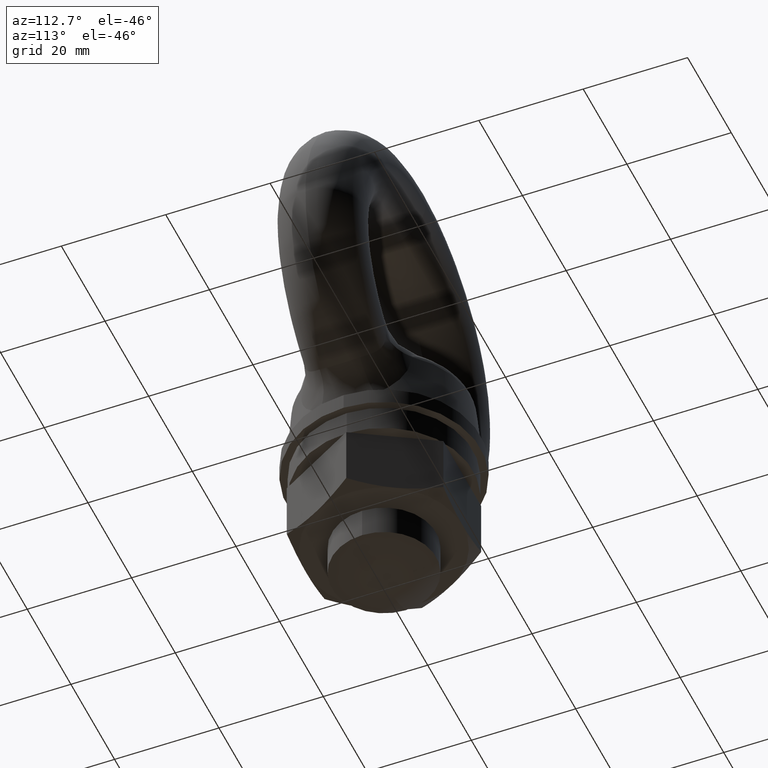
[diagram: clean part render]
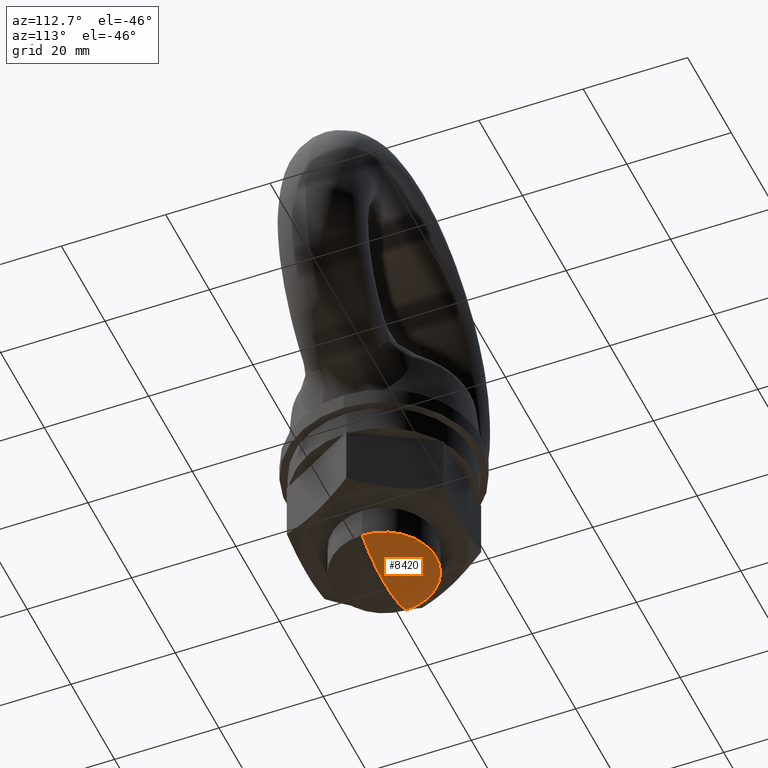
[diagram: same view with one face highlighted and labeled with its STEP entity id]
A machine part, auxiliary view. The second image highlights one B-rep face of the part: STEP entity #8420.
In plain terms, the highlighted spherical surface has radius 21.25 mm.
Its self-contained STEP definition (entity closure, byte-faithful):
#1586 = CARTESIAN_POINT ( 'NONE',  ( -9.999998711995109700, 1.224606274957423500E-015, -62.50000068693589800 ) ) ;
#1587 = DIRECTION ( 'NONE',  ( -1.000000000000000000, 0.0000000000000000000, 0.0000000000000000000 ) ) ;
#1588 = DIRECTION ( 'NONE',  ( 0.0000000000000000000, 0.0000000000000000000, -1.000000000000000000 ) ) ;
#1589 = CARTESIAN_POINT ( 'NONE',  ( 0.0000000000000000000, 0.0000000000000000000, -62.50000068693589800 ) ) ;
#1590 = AXIS2_PLACEMENT_3D ( 'NONE', #1589, #1588, #1587 ) ;
#1591 = CIRCLE ( 'NONE', #1590, 9.999998711995109700 ) ;
#7190 = AXIS2_PLACEMENT_3D ( 'NONE', #7211, #7210, #7209 ) ;
#7191 = CIRCLE ( 'NONE', #7190, 21.25000000000000000 ) ;
#7208 = CARTESIAN_POINT ( 'NONE',  ( -1.301144250936276000E-015, 0.0000000000000000000, -65.00000000000000000 ) ) ;
#7209 = DIRECTION ( 'NONE',  ( -1.000000000000000000, -1.224606353822377500E-016, 0.0000000000000000000 ) ) ;
#7210 = DIRECTION ( 'NONE',  ( -1.224606353822377300E-016, 1.000000000000000000, 0.0000000000000000000 ) ) ;
#7211 = CARTESIAN_POINT ( 'NONE',  ( 0.0000000000000000000, 0.0000000000000000000, -43.75000000000000000 ) ) ;
#7214 = CARTESIAN_POINT ( 'NONE',  ( 9.999998711995109700, 0.0000000000000000000, -62.50000068693589800 ) ) ;
#7215 = DIRECTION ( 'NONE',  ( -1.000000000000000000, 0.0000000000000000000, 0.0000000000000000000 ) ) ;
#7216 = DIRECTION ( 'NONE',  ( 0.0000000000000000000, 1.000000000000000000, 0.0000000000000000000 ) ) ;
#7217 = AXIS2_PLACEMENT_3D ( 'NONE', #7224, #7216, #7215 ) ;
#7218 = SPHERICAL_SURFACE ( 'NONE', #7217, 21.25000000000000000 ) ;
#7219 = FACE_OUTER_BOUND ( 'NONE', #8421, .T. ) ;
#7224 = CARTESIAN_POINT ( 'NONE',  ( 0.0000000000000000000, 0.0000000000000000000, -43.75000000000000000 ) ) ;
#8150 = ORIENTED_EDGE ( 'NONE', *, *, #8151, .F. ) ;
#8151 = EDGE_CURVE ( 'NONE', #8209, #8429, #9772, .T. ) ;
#8207 = ORIENTED_EDGE ( 'NONE', *, *, #8208, .T. ) ;
#8208 = EDGE_CURVE ( 'NONE', #8209, #8422, #1591, .T. ) ;
#8209 = VERTEX_POINT ( 'NONE', #1586 ) ;
#8420 = ADVANCED_FACE ( 'NONE', ( #7219 ), #7218, .T. ) ;
#8421 = EDGE_LOOP ( 'NONE', ( #8207, #8427, #8150 ) ) ;
#8422 = VERTEX_POINT ( 'NONE', #7214 ) ;
#8427 = ORIENTED_EDGE ( 'NONE', *, *, #8428, .T. ) ;
#8428 = EDGE_CURVE ( 'NONE', #8422, #8429, #7191, .T. ) ;
#8429 = VERTEX_POINT ( 'NONE', #7208 ) ;
#9768 = DIRECTION ( 'NONE',  ( 0.0000000000000000000, 0.0000000000000000000, -1.000000000000000000 ) ) ;
#9769 = DIRECTION ( 'NONE',  ( 0.0000000000000000000, -1.000000000000000000, 0.0000000000000000000 ) ) ;
#9770 = CARTESIAN_POINT ( 'NONE',  ( 0.0000000000000000000, 0.0000000000000000000, -43.75000000000000000 ) ) ;
#9771 = AXIS2_PLACEMENT_3D ( 'NONE', #9770, #9769, #9768 ) ;
#9772 = CIRCLE ( 'NONE', #9771, 21.25000000000000400 ) ;